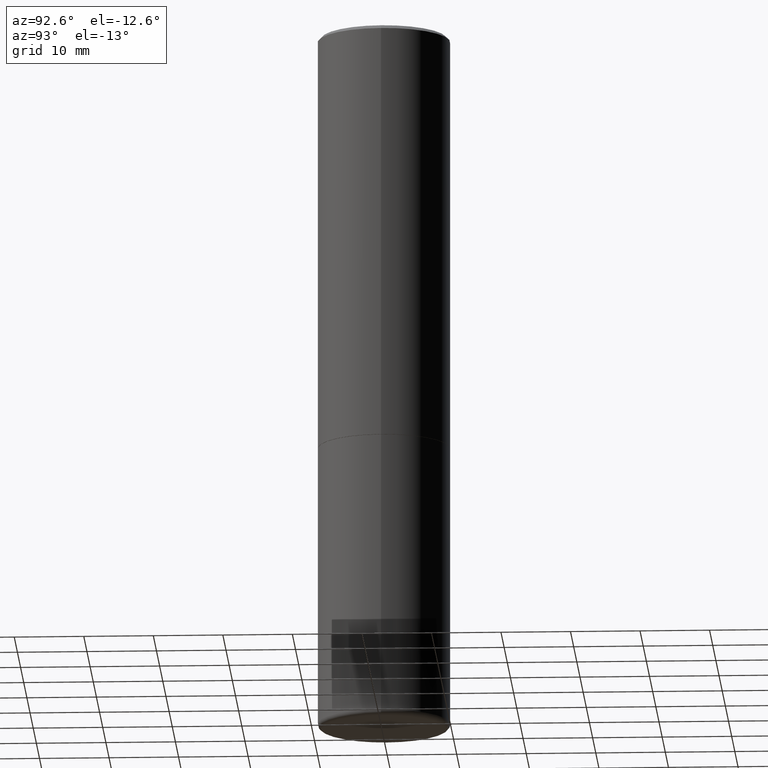
[diagram: clean part render]
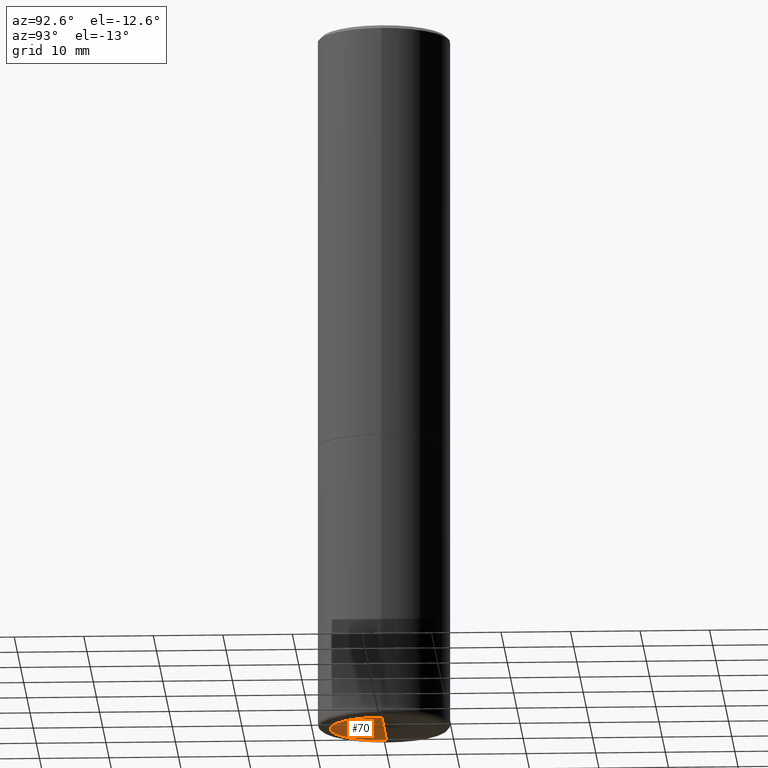
[diagram: same view with one face highlighted and labeled with its STEP entity id]
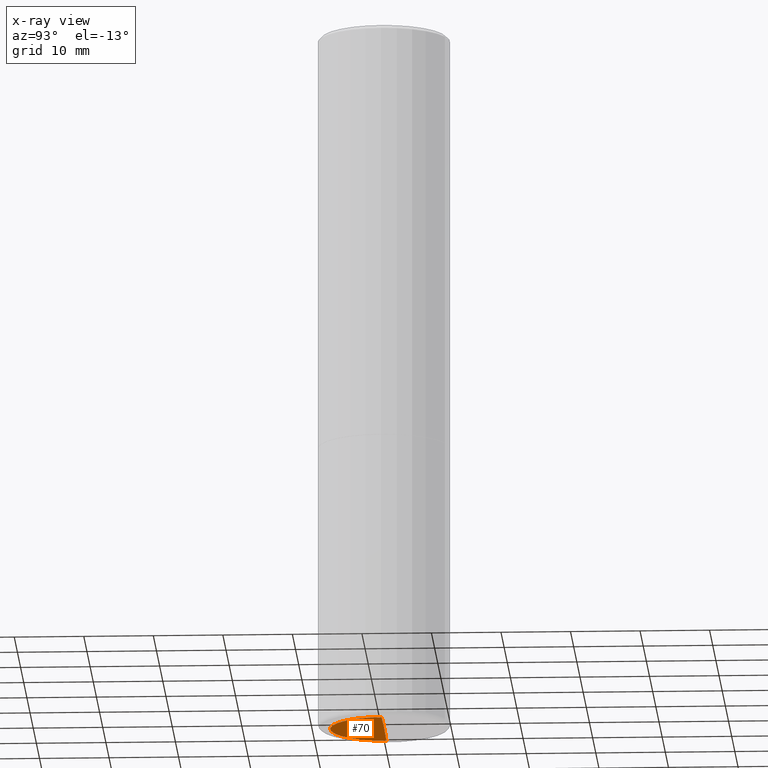
[diagram: x-ray of the same camera — body ghosted, the highlighted face saturated]
A machine part, auxiliary view. The second image highlights one B-rep face of the part: STEP entity #70.
The next image is the same camera in x-ray: the body ghosted, the highlighted face saturated — about 0% of this face is hidden behind the body in this view.
In plain terms, the highlighted conical surface has half-angle 88 deg.
Its self-contained STEP definition (entity closure, byte-faithful):
#25 = DIRECTION ( 'NONE',  ( 2.445468806185136597E-29, -3.491481338843145583E-15, -1.000000000000000000 ) ) ;
#31 = VERTEX_POINT ( 'NONE', #478 ) ;
#53 = DIRECTION ( 'NONE',  ( -2.445468806185136597E-29, 3.491481338843145583E-15, 1.000000000000000000 ) ) ;
#59 = CONICAL_SURFACE ( 'NONE', #190, 0.3047407039350492619, 1.535889741755010807 ) ;
#63 = VERTEX_POINT ( 'NONE', #314 ) ;
#70 = ADVANCED_FACE ( 'NONE', ( #237 ), #59, .F. ) ;
#81 = EDGE_LOOP ( 'NONE', ( #280, #425, #396 ) ) ;
#96 = CARTESIAN_POINT ( 'NONE',  ( 9.781021626775434250E-29, -1.396470664370530441E-14, -3.999650947105539256 ) ) ;
#118 = DIRECTION ( 'NONE',  ( 1.000000000000000000, -6.982962677686265133E-15, 0.000000000000000000 ) ) ;
#160 = AXIS2_PLACEMENT_3D ( 'NONE', #342, #53, #118 ) ;
#174 = VECTOR ( 'NONE', #307, 39.37007874015748143 ) ;
#184 = VERTEX_POINT ( 'NONE', #454 ) ;
#190 = AXIS2_PLACEMENT_3D ( 'NONE', #96, #25, #274 ) ;
#237 = FACE_OUTER_BOUND ( 'NONE', #81, .T. ) ;
#253 = CARTESIAN_POINT ( 'NONE',  ( 0.3047407039350492619, -1.605537963289119756E-14, -3.999650947105539256 ) ) ;
#274 = DIRECTION ( 'NONE',  ( -1.000000000000000000, 6.982962677686265133E-15, 0.000000000000000000 ) ) ;
#280 = ORIENTED_EDGE ( 'NONE', *, *, #332, .F. ) ;
#307 = DIRECTION ( 'NONE',  ( -0.9993908270190957621, 6.856857904024558837E-15, -0.03489949670250019204 ) ) ;
#314 = CARTESIAN_POINT ( 'NONE',  ( 0.3047407039350492619, -1.605537963289119756E-14, -3.999650947105539256 ) ) ;
#328 = CIRCLE ( 'NONE', #160, 0.3047407039350492619 ) ;
#332 = EDGE_CURVE ( 'NONE', #31, #184, #458, .T. ) ;
#339 = EDGE_CURVE ( 'NONE', #31, #63, #340, .T. ) ;
#340 = LINE ( 'NONE', #253, #450 ) ;
#342 = CARTESIAN_POINT ( 'NONE',  ( 9.781021626775434250E-29, -1.396470664370530441E-14, -3.999650947105539256 ) ) ;
#368 = EDGE_CURVE ( 'NONE', #184, #63, #328, .T. ) ;
#396 = ORIENTED_EDGE ( 'NONE', *, *, #368, .F. ) ;
#420 = CARTESIAN_POINT ( 'NONE',  ( -0.3047407039350492619, -1.183671368175501508E-14, -3.999650947105539256 ) ) ;
#425 = ORIENTED_EDGE ( 'NONE', *, *, #339, .T. ) ;
#450 = VECTOR ( 'NONE', #472, 39.37007874015748143 ) ;
#454 = CARTESIAN_POINT ( 'NONE',  ( -0.3047407039350492619, -1.183671368175501508E-14, -3.999650947105539256 ) ) ;
#458 = LINE ( 'NONE', #420, #174 ) ;
#472 = DIRECTION ( 'NONE',  ( 0.9993908270190957621, -6.978169709227539121E-15, -0.03489949670250019204 ) ) ;
#478 = CARTESIAN_POINT ( 'NONE',  ( 9.753116872605322365E-29, -1.393024421333557425E-14, -3.989009167228670716 ) ) ;